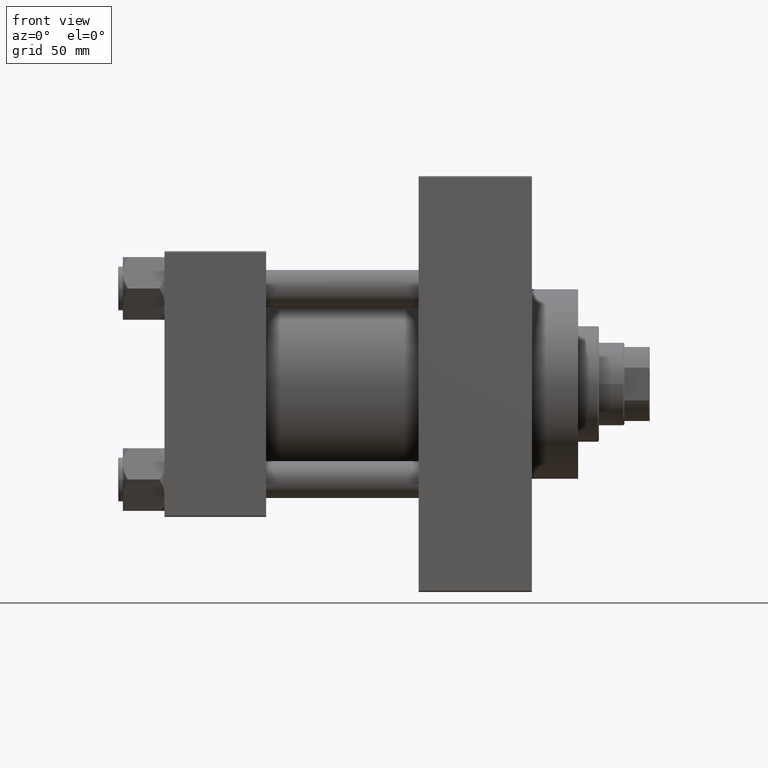
[diagram: clean part render]
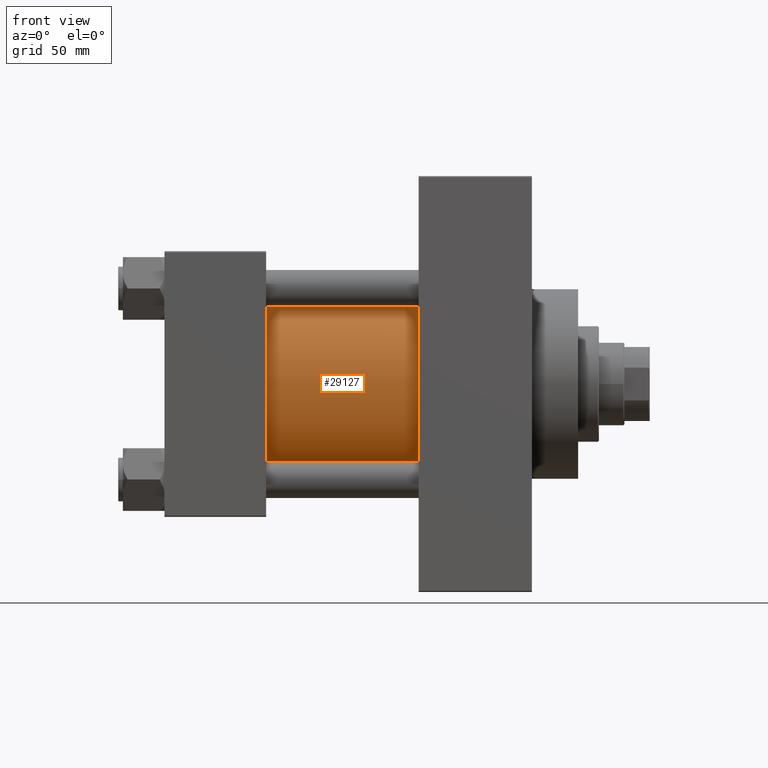
[diagram: same view with one face highlighted and labeled with its STEP entity id]
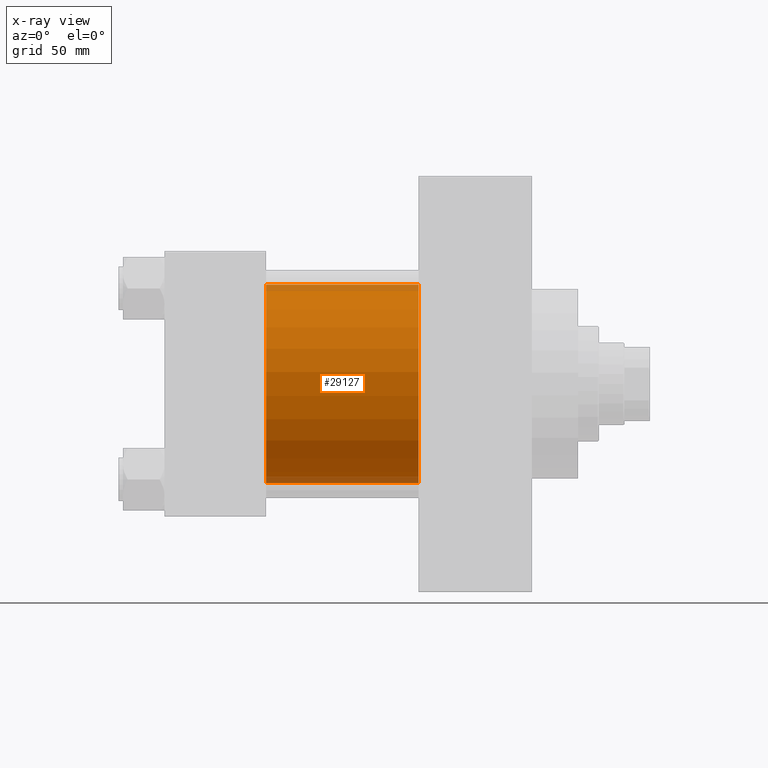
[diagram: x-ray of the same camera — body ghosted, the highlighted face saturated]
A machine part, front view. The second image highlights one B-rep face of the part: STEP entity #29127.
The next image is the same camera in x-ray: the body ghosted, the highlighted face saturated — about 7% of this face is hidden behind the body in this view.
In plain terms, the highlighted cylindrical surface (partial cylindrical patch) has radius 43 mm, axis along (-1, -0, -0).
Its self-contained STEP definition (entity closure, byte-faithful):
#71 = ORIENTED_EDGE ( 'NONE', *, *, #4471, .F. ) ;
#237 = DIRECTION ( 'NONE',  ( 1.000000000000000000, -0.000000000000000000, 0.000000000000000000 ) ) ;
#415 = DIRECTION ( 'NONE',  ( -1.000000000000000000, -0.000000000000000000, -0.000000000000000000 ) ) ;
#2859 = CARTESIAN_POINT ( 'NONE',  ( 110.0000000000000000, 2.663896022368408223E-15, -43.00000000000000000 ) ) ;
#3271 = EDGE_LOOP ( 'NONE', ( #21488, #71, #44940, #8963 ) ) ;
#4471 = EDGE_CURVE ( 'NONE', #32203, #20253, #49178, .T. ) ;
#4958 = CARTESIAN_POINT ( 'NONE',  ( 44.00000000000000000, -2.602085213965210642E-15, 43.00000000000000000 ) ) ;
#8963 = ORIENTED_EDGE ( 'NONE', *, *, #22826, .T. ) ;
#10328 = CARTESIAN_POINT ( 'NONE',  ( 110.0000000000000000, -2.602085213965210642E-15, 43.00000000000000000 ) ) ;
#10573 = DIRECTION ( 'NONE',  ( -1.000000000000000000, -0.000000000000000000, -0.000000000000000000 ) ) ;
#11226 = CARTESIAN_POINT ( 'NONE',  ( 110.0000000000000000, -2.602085213965210642E-15, 0.000000000000000000 ) ) ;
#11311 = CARTESIAN_POINT ( 'NONE',  ( 110.0000000000000000, -2.602085213965210642E-15, 43.00000000000000000 ) ) ;
#12722 = DIRECTION ( 'NONE',  ( 1.000000000000000000, 0.000000000000000000, 0.000000000000000000 ) ) ;
#14790 = CARTESIAN_POINT ( 'NONE',  ( 110.0000000000000000, 2.663896022368408223E-15, -43.00000000000000000 ) ) ;
#15515 = CYLINDRICAL_SURFACE ( 'NONE', #21249, 43.00000000000000000 ) ;
#18174 = EDGE_CURVE ( 'NONE', #32203, #47190, #44842, .T. ) ;
#20253 = VERTEX_POINT ( 'NONE', #14790 ) ;
#20360 = CARTESIAN_POINT ( 'NONE',  ( 44.00000000000000000, -2.602085213965210642E-15, 0.000000000000000000 ) ) ;
#21249 = AXIS2_PLACEMENT_3D ( 'NONE', #11226, #415, #42713 ) ;
#21488 = ORIENTED_EDGE ( 'NONE', *, *, #34093, .F. ) ;
#22826 = EDGE_CURVE ( 'NONE', #47190, #46894, #23995, .T. ) ;
#23995 = CIRCLE ( 'NONE', #27987, 43.00000000000000000 ) ;
#27987 = AXIS2_PLACEMENT_3D ( 'NONE', #20360, #237, #42538 ) ;
#29127 = ADVANCED_FACE ( 'NONE', ( #31391 ), #15515, .T. ) ;
#30720 = AXIS2_PLACEMENT_3D ( 'NONE', #43222, #12722, #31159 ) ;
#31159 = DIRECTION ( 'NONE',  ( 0.000000000000000000, 0.000000000000000000, -1.000000000000000000 ) ) ;
#31391 = FACE_OUTER_BOUND ( 'NONE', #3271, .T. ) ;
#32203 = VERTEX_POINT ( 'NONE', #11311 ) ;
#32605 = LINE ( 'NONE', #2859, #45531 ) ;
#34093 = EDGE_CURVE ( 'NONE', #20253, #46894, #32605, .T. ) ;
#38263 = VECTOR ( 'NONE', #10573, 1000.000000000000000 ) ;
#38607 = CARTESIAN_POINT ( 'NONE',  ( 44.00000000000000000, 2.663896022368408223E-15, -43.00000000000000000 ) ) ;
#40896 = DIRECTION ( 'NONE',  ( -1.000000000000000000, -0.000000000000000000, -0.000000000000000000 ) ) ;
#42538 = DIRECTION ( 'NONE',  ( 0.000000000000000000, 0.000000000000000000, 1.000000000000000000 ) ) ;
#42713 = DIRECTION ( 'NONE',  ( 0.000000000000000000, 0.000000000000000000, 1.000000000000000000 ) ) ;
#43222 = CARTESIAN_POINT ( 'NONE',  ( 110.0000000000000000, -2.602085213965210642E-15, 0.000000000000000000 ) ) ;
#44842 = LINE ( 'NONE', #10328, #38263 ) ;
#44940 = ORIENTED_EDGE ( 'NONE', *, *, #18174, .T. ) ;
#45531 = VECTOR ( 'NONE', #40896, 1000.000000000000000 ) ;
#46894 = VERTEX_POINT ( 'NONE', #38607 ) ;
#47190 = VERTEX_POINT ( 'NONE', #4958 ) ;
#49178 = CIRCLE ( 'NONE', #30720, 43.00000000000000000 ) ;